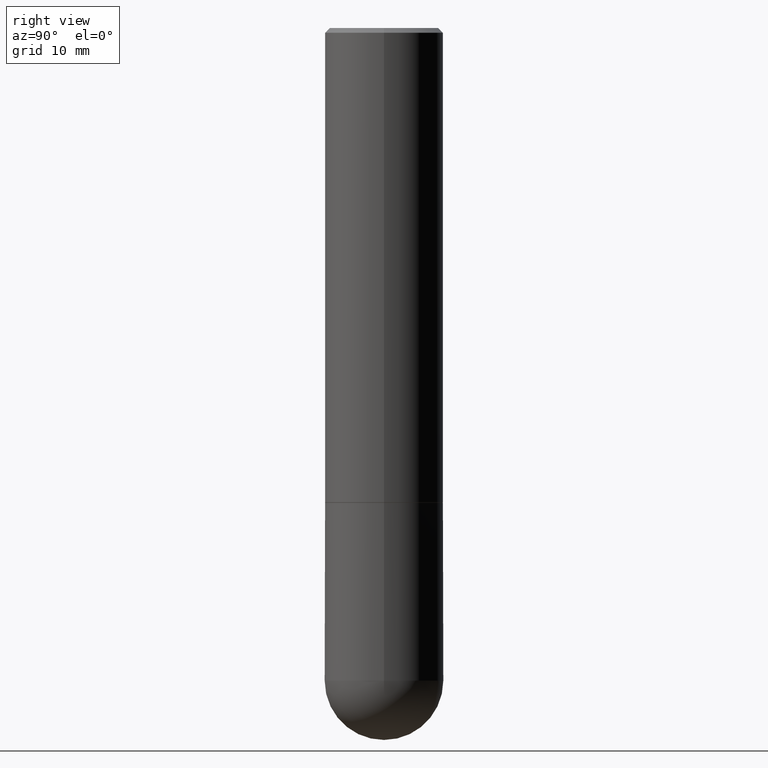
[diagram: clean part render]
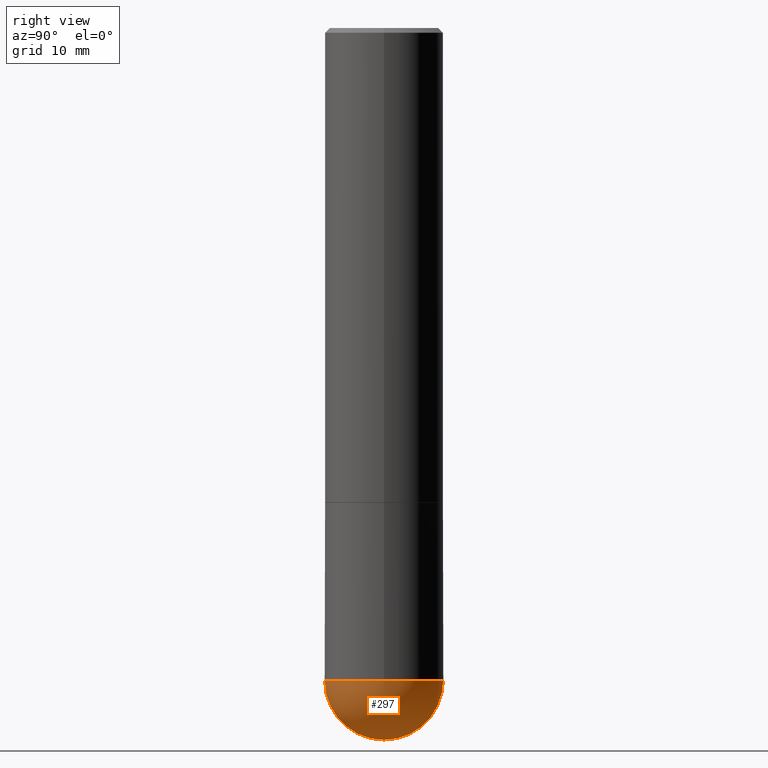
[diagram: same view with one face highlighted and labeled with its STEP entity id]
A machine part, right view. The second image highlights one B-rep face of the part: STEP entity #297.
In plain terms, the highlighted spherical surface has radius 6.35 mm.
Its self-contained STEP definition (entity closure, byte-faithful):
#1 = CARTESIAN_POINT ( 'NONE',  ( 6.725039217009124520E-29, -9.601573681818649859E-15, -2.750000000000000000 ) ) ;
#15 = CIRCLE ( 'NONE', #259, 0.2500000000000000000 ) ;
#17 = VERTEX_POINT ( 'NONE', #228 ) ;
#57 = EDGE_CURVE ( 'NONE', #307, #17, #408, .T. ) ;
#70 = VERTEX_POINT ( 'NONE', #347 ) ;
#74 = DIRECTION ( 'NONE',  ( -1.000000000000000000, 7.105427357601001070E-15, -4.926315508542082329E-29 ) ) ;
#83 = ORIENTED_EDGE ( 'NONE', *, *, #272, .F. ) ;
#95 = DIRECTION ( 'NONE',  ( 6.982962677686266711E-15, 1.000000000000000000, 0.000000000000000000 ) ) ;
#98 = SPHERICAL_SURFACE ( 'NONE', #110, 0.2500000000000001110 ) ;
#102 = AXIS2_PLACEMENT_3D ( 'NONE', #155, #244, #95 ) ;
#110 = AXIS2_PLACEMENT_3D ( 'NONE', #128, #131, #346 ) ;
#113 = EDGE_CURVE ( 'NONE', #70, #362, #15, .T. ) ;
#128 = CARTESIAN_POINT ( 'NONE',  ( 6.393919439095240515E-29, -1.007575604995870173E-14, -2.750000000000000444 ) ) ;
#131 = DIRECTION ( 'NONE',  ( -1.000000000000000000, 6.982962677686265922E-15, -4.883557194083113462E-29 ) ) ;
#134 = AXIS2_PLACEMENT_3D ( 'NONE', #202, #74, #208 ) ;
#155 = CARTESIAN_POINT ( 'NONE',  ( 6.393919439095240515E-29, -1.007575604995870173E-14, -2.750000000000000444 ) ) ;
#163 = CIRCLE ( 'NONE', #134, 0.2500000000000001110 ) ;
#175 = AXIS2_PLACEMENT_3D ( 'NONE', #257, #320, #200 ) ;
#178 = ORIENTED_EDGE ( 'NONE', *, *, #113, .F. ) ;
#190 = CARTESIAN_POINT ( 'NONE',  ( 7.015976219256266741E-29, -1.093331829968014633E-14, -3.000000000000000888 ) ) ;
#200 = DIRECTION ( 'NONE',  ( 1.000000000000000000, -6.982962677686262766E-15, 0.000000000000000000 ) ) ;
#202 = CARTESIAN_POINT ( 'NONE',  ( 6.393919439095240515E-29, -1.007575604995870173E-14, -2.750000000000000444 ) ) ;
#208 = DIRECTION ( 'NONE',  ( -7.105427357601001859E-15, -1.000000000000000000, 0.000000000000000000 ) ) ;
#213 = ORIENTED_EDGE ( 'NONE', *, *, #373, .F. ) ;
#228 = CARTESIAN_POINT ( 'NONE',  ( 1.745740669421632745E-15, 0.2499999999999902300, -2.750000000000000888 ) ) ;
#244 = DIRECTION ( 'NONE',  ( 1.000000000000000000, -6.982962677686265922E-15, 4.883557194083112340E-29 ) ) ;
#257 = CARTESIAN_POINT ( 'NONE',  ( 6.725039217009124520E-29, -9.601573681818649859E-15, -2.750000000000000000 ) ) ;
#259 = AXIS2_PLACEMENT_3D ( 'NONE', #1, #286, #412 ) ;
#272 = EDGE_CURVE ( 'NONE', #362, #17, #303, .T. ) ;
#286 = DIRECTION ( 'NONE',  ( -2.445468806185136597E-29, 3.491481338843145583E-15, 1.000000000000000000 ) ) ;
#293 = CARTESIAN_POINT ( 'NONE',  ( 0.2500000000000000000, -1.003800884917403995E-14, -2.750000000000000000 ) ) ;
#297 = ADVANCED_FACE ( 'NONE', ( #377 ), #98, .T. ) ;
#303 = CIRCLE ( 'NONE', #175, 0.2500000000000000000 ) ;
#307 = VERTEX_POINT ( 'NONE', #190 ) ;
#320 = DIRECTION ( 'NONE',  ( -2.445468806185136597E-29, 3.491481338843145583E-15, 1.000000000000000000 ) ) ;
#331 = ORIENTED_EDGE ( 'NONE', *, *, #57, .T. ) ;
#346 = DIRECTION ( 'NONE',  ( 6.982962677686265922E-15, 1.000000000000000000, -4.370956789862818783E-15 ) ) ;
#347 = CARTESIAN_POINT ( 'NONE',  ( -1.776356839400184989E-15, -0.2500000000000098810, -2.749999999999998668 ) ) ;
#362 = VERTEX_POINT ( 'NONE', #293 ) ;
#373 = EDGE_CURVE ( 'NONE', #307, #70, #163, .T. ) ;
#374 = EDGE_LOOP ( 'NONE', ( #213, #331, #83, #178 ) ) ;
#377 = FACE_OUTER_BOUND ( 'NONE', #374, .T. ) ;
#408 = CIRCLE ( 'NONE', #102, 0.2500000000000001110 ) ;
#412 = DIRECTION ( 'NONE',  ( 1.000000000000000000, -6.982962677686262766E-15, 0.000000000000000000 ) ) ;